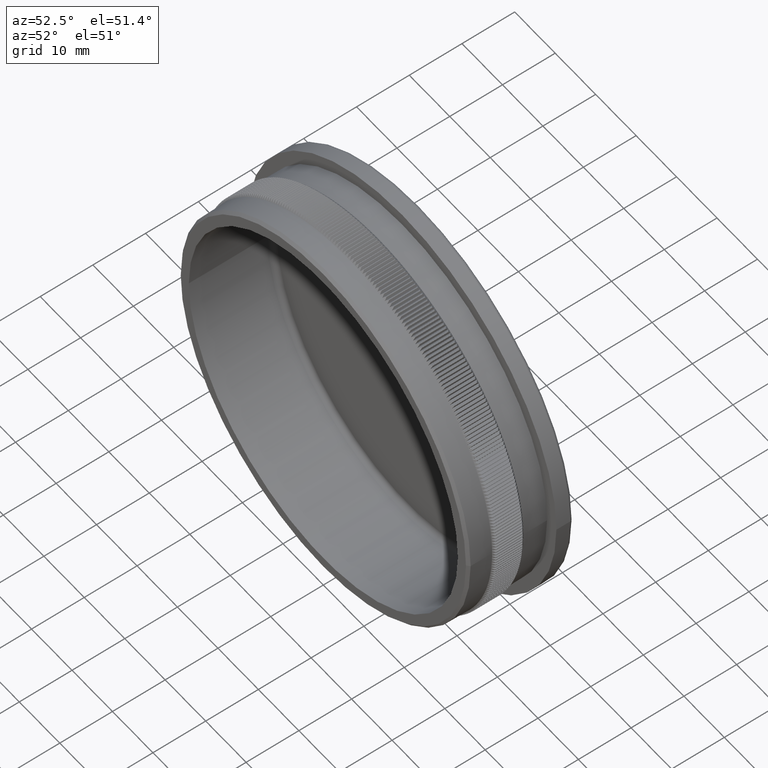
[diagram: clean part render]
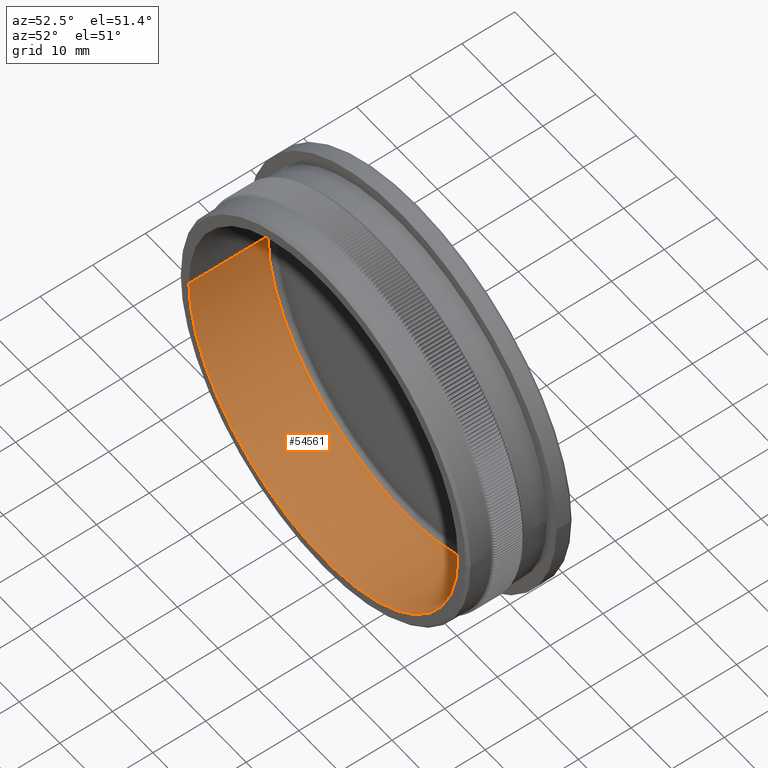
[diagram: same view with one face highlighted and labeled with its STEP entity id]
A machine part, auxiliary view. The second image highlights one B-rep face of the part: STEP entity #54561.
In plain terms, the highlighted cylindrical surface (partial cylindrical patch) has radius 33.25 mm, axis along (-0, -1, -0).
Its self-contained STEP definition (entity closure, byte-faithful):
#3894 = ORIENTED_EDGE ( 'NONE', *, *, #50601, .T. ) ;
#8163 = DIRECTION ( 'NONE',  ( 1.000000000000000000, -3.234672346182314100E-015, 0.0000000000000000000 ) ) ;
#9417 = DIRECTION ( 'NONE',  ( 3.245114972974590400E-015, 1.000000000000000000, 0.0000000000000000000 ) ) ;
#10790 = CIRCLE ( 'NONE', #65027, 33.25000000000002800 ) ;
#13332 = CARTESIAN_POINT ( 'NONE',  ( 33.25000000000002800, 14.99999999999994000, 0.0000000000000000000 ) ) ;
#14058 = DIRECTION ( 'NONE',  ( 1.000000000000000000, -3.234672346182314100E-015, 0.0000000000000000000 ) ) ;
#16821 = CARTESIAN_POINT ( 'NONE',  ( 33.25000000000000000, -3.472173408432608900E-016, 0.0000000000000000000 ) ) ;
#17362 = ORIENTED_EDGE ( 'NONE', *, *, #65137, .F. ) ;
#17454 = CYLINDRICAL_SURFACE ( 'NONE', #19103, 33.25000000000002800 ) ;
#18152 = CARTESIAN_POINT ( 'NONE',  ( -5.192183956759307500E-014, 1.075528555105620400E-013, 0.0000000000000000000 ) ) ;
#19103 = AXIS2_PLACEMENT_3D ( 'NONE', #63688, #23732, #8163 ) ;
#23732 = DIRECTION ( 'NONE',  ( -3.245114972974590400E-015, -1.000000000000000000, -0.0000000000000000000 ) ) ;
#24228 = CARTESIAN_POINT ( 'NONE',  ( -33.25000000000009900, 2.154529283619673600E-013, 4.071950607164957900E-015 ) ) ;
#27439 = ORIENTED_EDGE ( 'NONE', *, *, #61265, .T. ) ;
#27849 = VECTOR ( 'NONE', #64653, 1000.000000000000000 ) ;
#28858 = VERTEX_POINT ( 'NONE', #24228 ) ;
#29685 = CIRCLE ( 'NONE', #33417, 33.25000000000005000 ) ;
#33417 = AXIS2_PLACEMENT_3D ( 'NONE', #18152, #48903, #58086 ) ;
#34682 = FACE_OUTER_BOUND ( 'NONE', #64906, .T. ) ;
#39045 = VERTEX_POINT ( 'NONE', #13332 ) ;
#40080 = ORIENTED_EDGE ( 'NONE', *, *, #44537, .T. ) ;
#42903 = VECTOR ( 'NONE', #54554, 1000.000000000000000 ) ;
#43578 = CARTESIAN_POINT ( 'NONE',  ( -33.25000000000002800, 15.00000000000015600, 4.071950607164952400E-015 ) ) ;
#43658 = LINE ( 'NONE', #64655, #42903 ) ;
#44537 = EDGE_CURVE ( 'NONE', #39045, #62538, #10790, .T. ) ;
#48903 = DIRECTION ( 'NONE',  ( -3.245114972974590400E-015, -1.000000000000000000, -0.0000000000000000000 ) ) ;
#50012 = CARTESIAN_POINT ( 'NONE',  ( -3.245114972974411400E-015, 15.00000000000004800, 0.0000000000000000000 ) ) ;
#50601 = EDGE_CURVE ( 'NONE', #62538, #28858, #43658, .T. ) ;
#54554 = DIRECTION ( 'NONE',  ( -3.245114972974590400E-015, -1.000000000000000000, -0.0000000000000000000 ) ) ;
#54561 = ADVANCED_FACE ( 'NONE', ( #34682 ), #17454, .F. ) ;
#57132 = VERTEX_POINT ( 'NONE', #16821 ) ;
#58086 = DIRECTION ( 'NONE',  ( 1.000000000000000000, -3.245114972974590800E-015, 0.0000000000000000000 ) ) ;
#61265 = EDGE_CURVE ( 'NONE', #28858, #57132, #29685, .T. ) ;
#61354 = CARTESIAN_POINT ( 'NONE',  ( 33.25000000000002800, 15.99999999999988600, 0.0000000000000000000 ) ) ;
#62538 = VERTEX_POINT ( 'NONE', #43578 ) ;
#63688 = CARTESIAN_POINT ( 'NONE',  ( 1.925929944387235900E-031, 15.99999999999999300, 0.0000000000000000000 ) ) ;
#64653 = DIRECTION ( 'NONE',  ( -3.245114972974590400E-015, -1.000000000000000000, -0.0000000000000000000 ) ) ;
#64655 = CARTESIAN_POINT ( 'NONE',  ( -33.25000000000002800, 16.00000000000009900, 4.071950607164952400E-015 ) ) ;
#64787 = LINE ( 'NONE', #61354, #27849 ) ;
#64906 = EDGE_LOOP ( 'NONE', ( #40080, #3894, #27439, #17362 ) ) ;
#65027 = AXIS2_PLACEMENT_3D ( 'NONE', #50012, #9417, #14058 ) ;
#65137 = EDGE_CURVE ( 'NONE', #39045, #57132, #64787, .T. ) ;